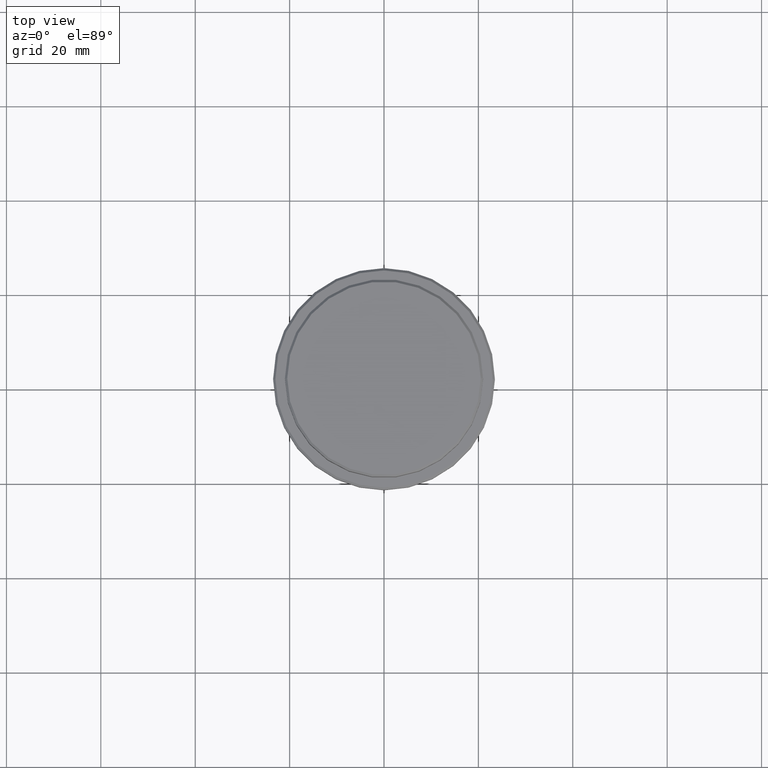
[diagram: clean part render]
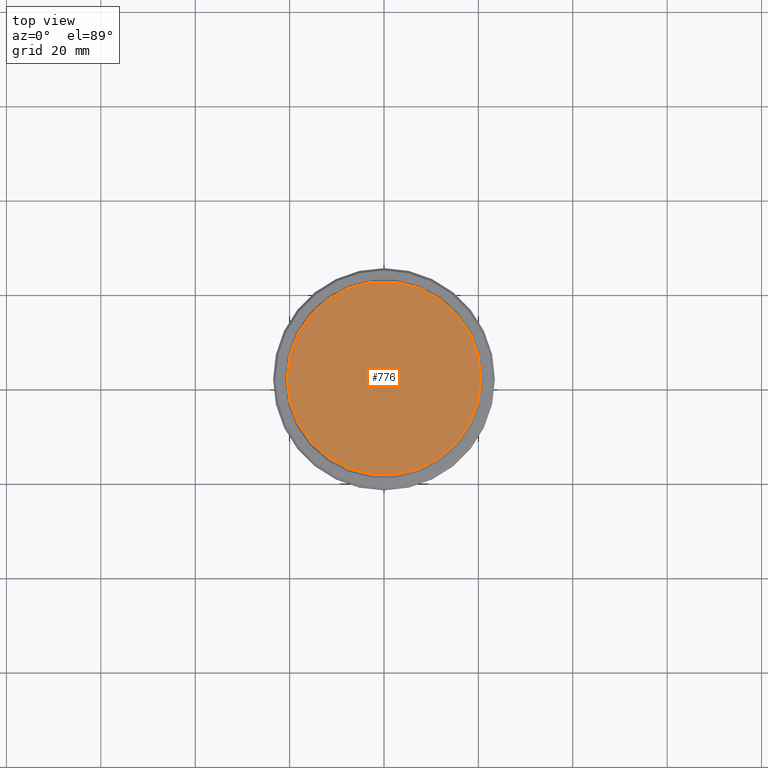
[diagram: same view with one face highlighted and labeled with its STEP entity id]
A machine part, top view. The second image highlights one B-rep face of the part: STEP entity #776.
In plain terms, the highlighted planar face has unit normal (0, -0, 1).
Its self-contained STEP definition (entity closure, byte-faithful):
#42 = AXIS2_PLACEMENT_3D ( 'NONE', #712, #1385, #810 ) ;
#137 = CIRCLE ( 'NONE', #42, 20.49999999999996447 ) ;
#154 = DIRECTION ( 'NONE',  ( -0.000000000000000000, -0.000000000000000000, 1.000000000000000000 ) ) ;
#179 = EDGE_CURVE ( 'NONE', #1020, #1288, #293, .T. ) ;
#262 = DIRECTION ( 'NONE',  ( 1.000000000000000000, 0.000000000000000000, 0.000000000000000000 ) ) ;
#293 = CIRCLE ( 'NONE', #1093, 20.49999999999996447 ) ;
#307 = ORIENTED_EDGE ( 'NONE', *, *, #179, .T. ) ;
#352 = EDGE_LOOP ( 'NONE', ( #307, #420 ) ) ;
#420 = ORIENTED_EDGE ( 'NONE', *, *, #1413, .T. ) ;
#695 = PLANE ( 'NONE',  #1261 ) ;
#712 = CARTESIAN_POINT ( 'NONE',  ( 0.000000000000000000, 0.000000000000000000, 0.000000000000000000 ) ) ;
#776 = ADVANCED_FACE ( 'NONE', ( #778 ), #695, .T. ) ;
#778 = FACE_OUTER_BOUND ( 'NONE', #352, .T. ) ;
#810 = DIRECTION ( 'NONE',  ( 1.000000000000000000, 0.000000000000000000, 0.000000000000000000 ) ) ;
#998 = CARTESIAN_POINT ( 'NONE',  ( -20.49999999999996447, 0.000000000000000000, 0.000000000000000000 ) ) ;
#1020 = VERTEX_POINT ( 'NONE', #998 ) ;
#1093 = AXIS2_PLACEMENT_3D ( 'NONE', #1247, #154, #262 ) ;
#1129 = CARTESIAN_POINT ( 'NONE',  ( 0.000000000000000000, 0.000000000000000000, 0.000000000000000000 ) ) ;
#1137 = DIRECTION ( 'NONE',  ( 1.000000000000000000, 0.000000000000000000, 0.000000000000000000 ) ) ;
#1223 = DIRECTION ( 'NONE',  ( 0.000000000000000000, -0.000000000000000000, 1.000000000000000000 ) ) ;
#1247 = CARTESIAN_POINT ( 'NONE',  ( 0.000000000000000000, 0.000000000000000000, 0.000000000000000000 ) ) ;
#1261 = AXIS2_PLACEMENT_3D ( 'NONE', #1129, #1223, #1137 ) ;
#1288 = VERTEX_POINT ( 'NONE', #1402 ) ;
#1385 = DIRECTION ( 'NONE',  ( -0.000000000000000000, -0.000000000000000000, 1.000000000000000000 ) ) ;
#1402 = CARTESIAN_POINT ( 'NONE',  ( 20.49999999999996447, 2.541142108230755902E-15, 0.000000000000000000 ) ) ;
#1413 = EDGE_CURVE ( 'NONE', #1288, #1020, #137, .T. ) ;